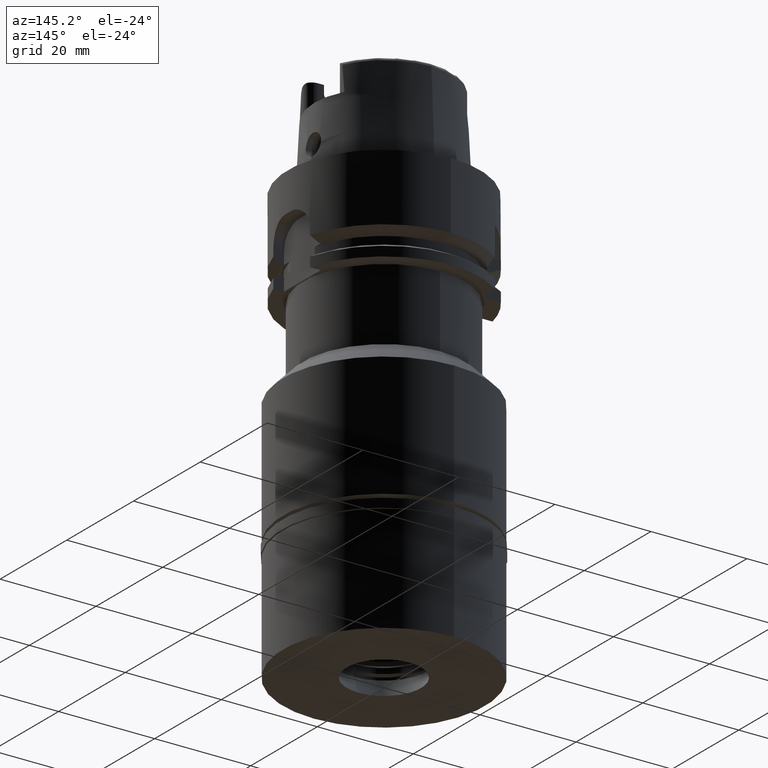
[diagram: clean part render]
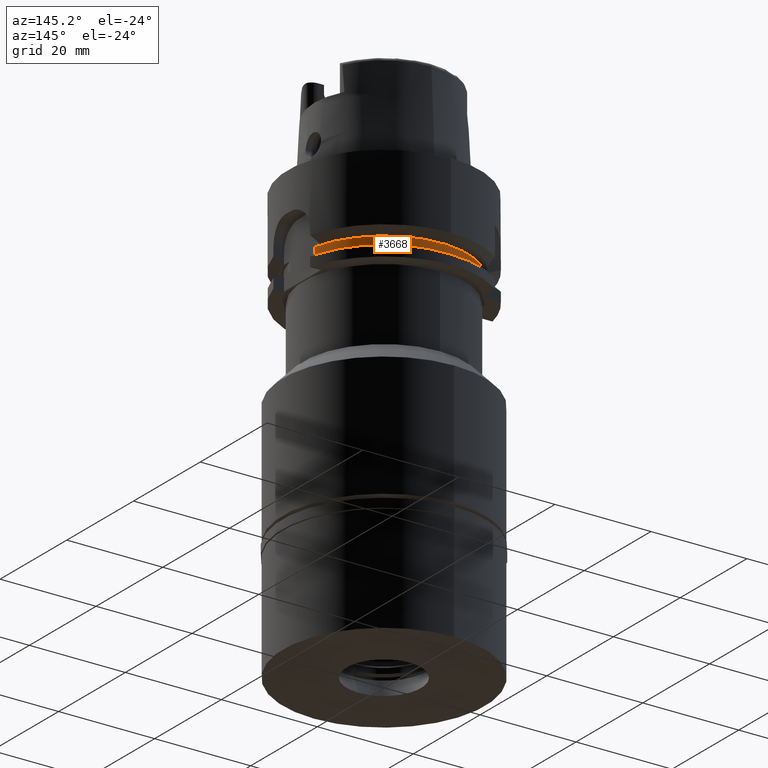
[diagram: same view with one face highlighted and labeled with its STEP entity id]
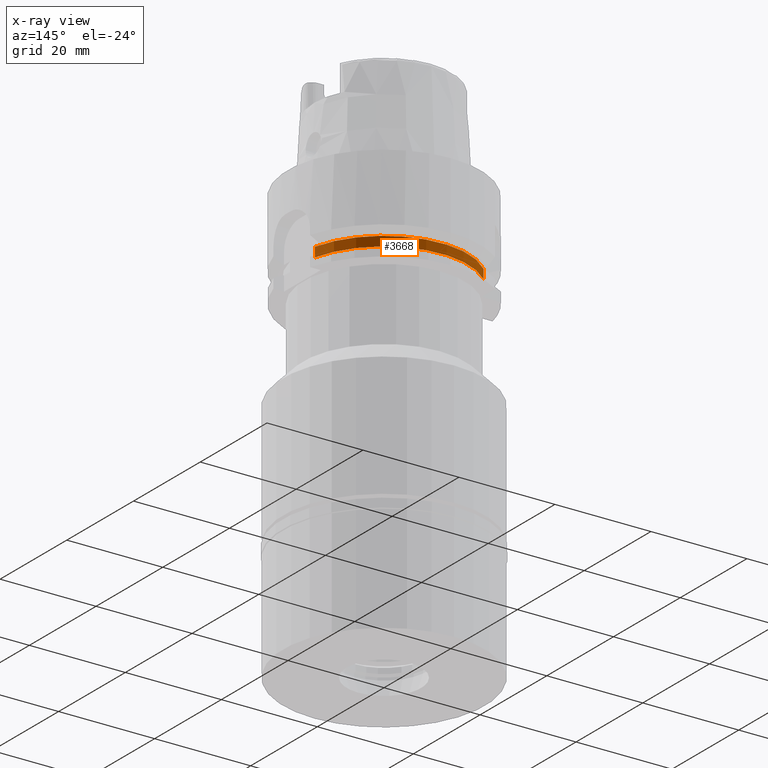
[diagram: x-ray of the same camera — body ghosted, the highlighted face saturated]
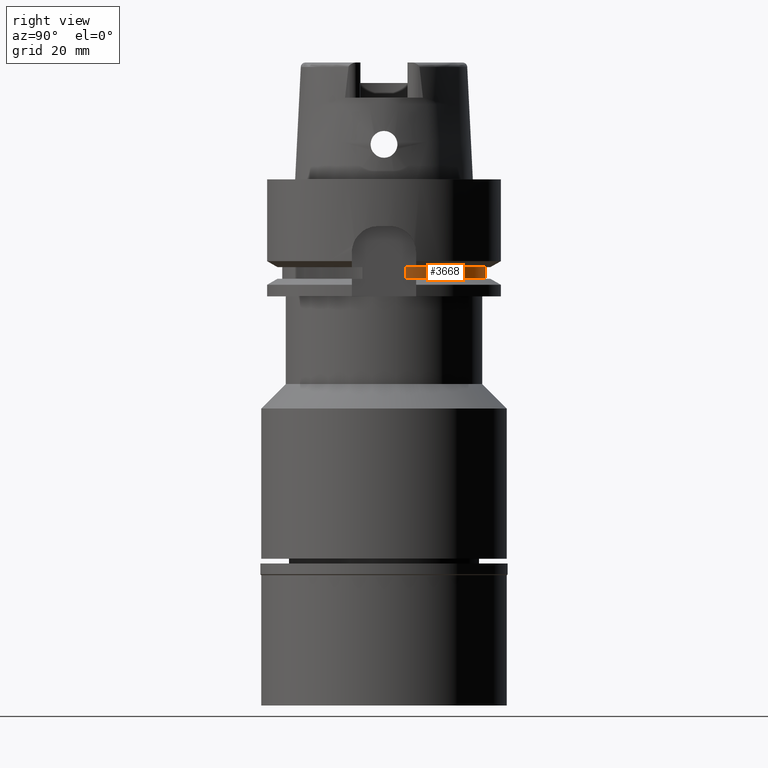
[diagram: same view with one face highlighted and labeled with its STEP entity id]
A machine part, auxiliary view. The second image highlights one B-rep face of the part: STEP entity #3668.
The next image is the same camera in x-ray: the body ghosted, the highlighted face saturated — about 0% of this face is hidden behind the body in this view.
A second angle (right view) of the same face is appended — the face is thin or edge-on in the first view.
In plain terms, the highlighted cylindrical surface (partial cylindrical patch) has radius 17.4 mm, axis along (0, 0, -1).
Its self-contained STEP definition (entity closure, byte-faithful):
#140 = EDGE_CURVE ( 'NONE', #5156, #5074, #4561, .T. ) ;
#321 = CARTESIAN_POINT ( 'NONE',  ( 17.00000000000000000, 3.709447398197999846, -17.00000000000000000 ) ) ;
#374 = CARTESIAN_POINT ( 'NONE',  ( 17.00000000000000000, 3.709447398197999846, -15.00000000000000000 ) ) ;
#441 = AXIS2_PLACEMENT_3D ( 'NONE', #4836, #582, #3148 ) ;
#508 = ORIENTED_EDGE ( 'NONE', *, *, #140, .F. ) ;
#515 = EDGE_CURVE ( 'NONE', #5156, #1788, #1050, .T. ) ;
#582 = DIRECTION ( 'NONE',  ( 0.0000000000000000000, 0.0000000000000000000, -1.000000000000000000 ) ) ;
#798 = ORIENTED_EDGE ( 'NONE', *, *, #2226, .T. ) ;
#886 = VECTOR ( 'NONE', #899, 1000.000000000000000 ) ;
#899 = DIRECTION ( 'NONE',  ( 0.0000000000000000000, 0.0000000000000000000, -1.000000000000000000 ) ) ;
#1050 = CIRCLE ( 'NONE', #3964, 17.40000000000000213 ) ;
#1192 = DIRECTION ( 'NONE',  ( 0.9770114942528667079, 0.2131866320803924297, 0.0000000000000000000 ) ) ;
#1267 = CARTESIAN_POINT ( 'NONE',  ( 17.00000000000000000, 3.709447398197999846, -17.00000000000000000 ) ) ;
#1481 = VECTOR ( 'NONE', #1625, 1000.000000000000000 ) ;
#1497 = CIRCLE ( 'NONE', #5118, 17.39999999999999858 ) ;
#1625 = DIRECTION ( 'NONE',  ( 0.0000000000000000000, 4.085620730621000160E-14, 1.000000000000000000 ) ) ;
#1722 = CARTESIAN_POINT ( 'NONE',  ( 0.0000000000000000000, 1.532339307432999848E-14, -17.00000000000000000 ) ) ;
#1788 = VERTEX_POINT ( 'NONE', #2681 ) ;
#1872 = ORIENTED_EDGE ( 'NONE', *, *, #2195, .F. ) ;
#2195 = EDGE_CURVE ( 'NONE', #3999, #1788, #2561, .T. ) ;
#2198 = CARTESIAN_POINT ( 'NONE',  ( -12.00000000000000000, 12.59999999999999964, -15.00000000000000000 ) ) ;
#2226 = EDGE_CURVE ( 'NONE', #3999, #5074, #1497, .T. ) ;
#2467 = DIRECTION ( 'NONE',  ( 0.0000000000000000000, 0.0000000000000000000, 1.000000000000000000 ) ) ;
#2561 = LINE ( 'NONE', #2198, #886 ) ;
#2681 = CARTESIAN_POINT ( 'NONE',  ( -12.00000000000000000, 12.59999999999999964, -17.00000000000000000 ) ) ;
#2991 = ORIENTED_EDGE ( 'NONE', *, *, #515, .T. ) ;
#3148 = DIRECTION ( 'NONE',  ( 0.0000000000000000000, -1.000000000000000000, 0.0000000000000000000 ) ) ;
#3567 = FACE_OUTER_BOUND ( 'NONE', #4263, .T. ) ;
#3668 = ADVANCED_FACE ( 'NONE', ( #3567 ), #4373, .T. ) ;
#3746 = CARTESIAN_POINT ( 'NONE',  ( -12.00000000000000000, 12.59999999999999964, -15.00000000000000000 ) ) ;
#3964 = AXIS2_PLACEMENT_3D ( 'NONE', #1722, #2467, #1192 ) ;
#3999 = VERTEX_POINT ( 'NONE', #3746 ) ;
#4263 = EDGE_LOOP ( 'NONE', ( #1872, #798, #508, #2991 ) ) ;
#4373 = CYLINDRICAL_SURFACE ( 'NONE', #441, 17.39999999999999858 ) ;
#4561 = LINE ( 'NONE', #1267, #1481 ) ;
#4745 = DIRECTION ( 'NONE',  ( 0.0000000000000000000, 0.0000000000000000000, -1.000000000000000000 ) ) ;
#4836 = CARTESIAN_POINT ( 'NONE',  ( 0.0000000000000000000, 1.532339307432999848E-14, 25.12500000000000000 ) ) ;
#5044 = CARTESIAN_POINT ( 'NONE',  ( 0.0000000000000000000, 1.532339307432999848E-14, -15.00000000000000000 ) ) ;
#5071 = DIRECTION ( 'NONE',  ( 0.0000000000000000000, 1.000000000000000000, 0.0000000000000000000 ) ) ;
#5074 = VERTEX_POINT ( 'NONE', #374 ) ;
#5118 = AXIS2_PLACEMENT_3D ( 'NONE', #5044, #4745, #5071 ) ;
#5156 = VERTEX_POINT ( 'NONE', #321 ) ;